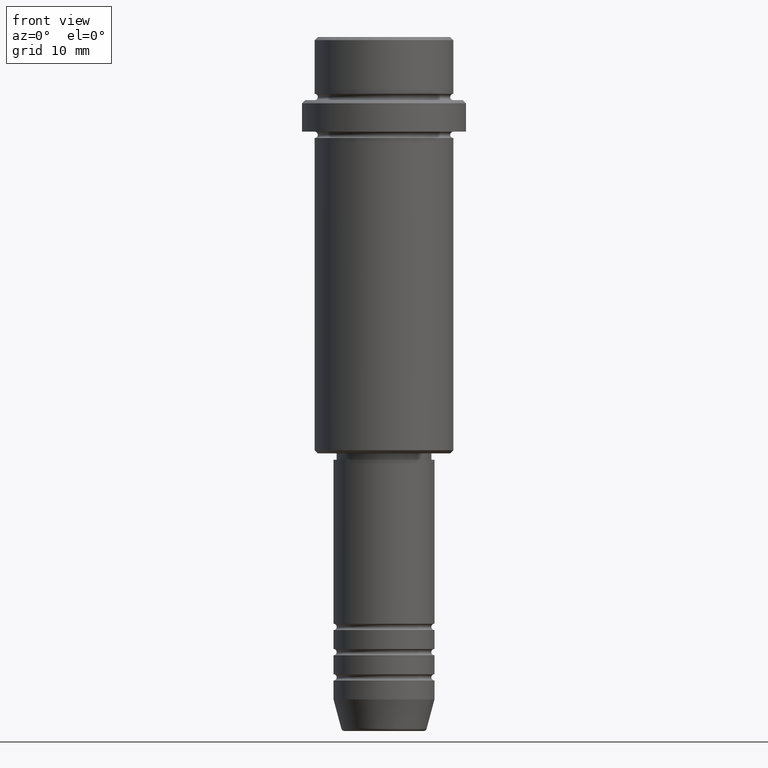
[diagram: clean part render]
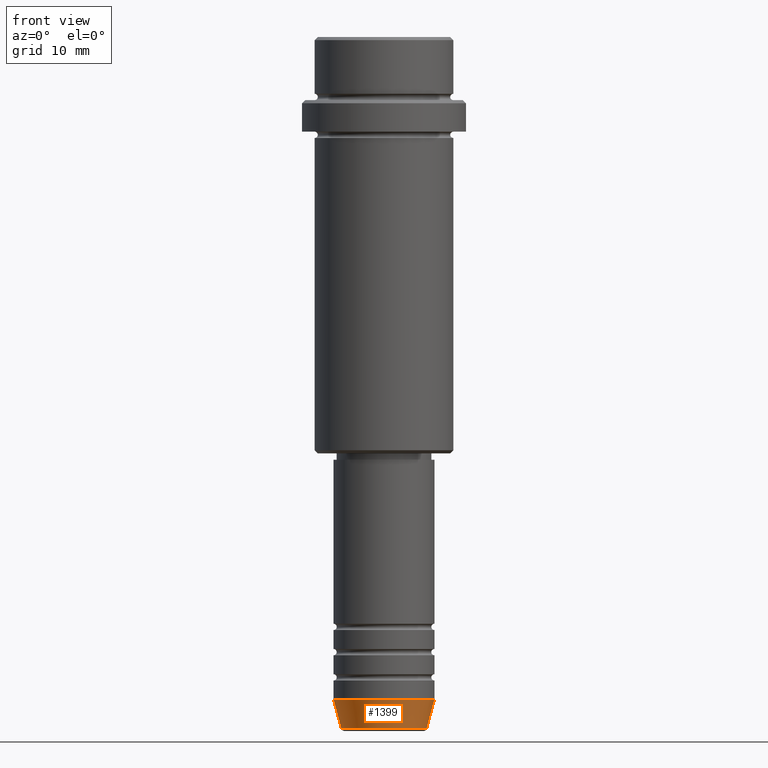
[diagram: same view with one face highlighted and labeled with its STEP entity id]
A machine part, front view. The second image highlights one B-rep face of the part: STEP entity #1399.
In plain terms, the highlighted conical surface has half-angle 15 deg.
Its self-contained STEP definition (entity closure, byte-faithful):
#14 = CARTESIAN_POINT ( 'NONE',  ( 8.000000000000000000, 0.000000000000000000, -105.0000000000000142 ) ) ;
#89 = EDGE_CURVE ( 'NONE', #248, #1394, #218, .T. ) ;
#107 = VECTOR ( 'NONE', #1205, 1000.000000000000000 ) ;
#131 = AXIS2_PLACEMENT_3D ( 'NONE', #641, #143, #1111 ) ;
#143 = DIRECTION ( 'NONE',  ( -0.000000000000000000, -0.000000000000000000, 1.000000000000000000 ) ) ;
#167 = EDGE_CURVE ( 'NONE', #248, #960, #191, .T. ) ;
#168 = ORIENTED_EDGE ( 'NONE', *, *, #167, .T. ) ;
#190 = DIRECTION ( 'NONE',  ( -0.000000000000000000, -0.000000000000000000, 1.000000000000000000 ) ) ;
#191 = CIRCLE ( 'NONE', #655, 6.759553456999433330 ) ;
#210 = DIRECTION ( 'NONE',  ( 1.000000000000000000, 0.000000000000000000, 0.000000000000000000 ) ) ;
#218 = LINE ( 'NONE', #333, #1358 ) ;
#248 = VERTEX_POINT ( 'NONE', #1221 ) ;
#290 = EDGE_LOOP ( 'NONE', ( #857, #168, #497, #692 ) ) ;
#333 = CARTESIAN_POINT ( 'NONE',  ( -8.000000000000000000, 9.797174393178825657E-16, -105.0000000000000142 ) ) ;
#393 = FACE_OUTER_BOUND ( 'NONE', #290, .T. ) ;
#420 = CARTESIAN_POINT ( 'NONE',  ( 8.000000000000000000, 0.000000000000000000, -105.0000000000000142 ) ) ;
#430 = CARTESIAN_POINT ( 'NONE',  ( -8.000000000000000000, 9.797174393178825657E-16, -105.0000000000000142 ) ) ;
#494 = EDGE_CURVE ( 'NONE', #960, #508, #768, .T. ) ;
#497 = ORIENTED_EDGE ( 'NONE', *, *, #494, .T. ) ;
#508 = VERTEX_POINT ( 'NONE', #14 ) ;
#602 = AXIS2_PLACEMENT_3D ( 'NONE', #739, #190, #942 ) ;
#633 = DIRECTION ( 'NONE',  ( -0.2588190451025213501, 3.169619151431772337E-17, 0.9659258262890680902 ) ) ;
#641 = CARTESIAN_POINT ( 'NONE',  ( 0.000000000000000000, 0.000000000000000000, -105.0000000000000142 ) ) ;
#655 = AXIS2_PLACEMENT_3D ( 'NONE', #1280, #1064, #210 ) ;
#691 = CARTESIAN_POINT ( 'NONE',  ( 6.759553456999433330, 0.000000000000000000, -109.6294095225512706 ) ) ;
#692 = ORIENTED_EDGE ( 'NONE', *, *, #912, .F. ) ;
#739 = CARTESIAN_POINT ( 'NONE',  ( 0.000000000000000000, 0.000000000000000000, -105.0000000000000142 ) ) ;
#740 = CIRCLE ( 'NONE', #131, 8.000000000000000000 ) ;
#768 = LINE ( 'NONE', #420, #107 ) ;
#857 = ORIENTED_EDGE ( 'NONE', *, *, #89, .F. ) ;
#912 = EDGE_CURVE ( 'NONE', #1394, #508, #740, .T. ) ;
#942 = DIRECTION ( 'NONE',  ( 1.000000000000000000, 0.000000000000000000, 0.000000000000000000 ) ) ;
#960 = VERTEX_POINT ( 'NONE', #691 ) ;
#1064 = DIRECTION ( 'NONE',  ( -0.000000000000000000, -0.000000000000000000, 1.000000000000000000 ) ) ;
#1111 = DIRECTION ( 'NONE',  ( 1.000000000000000000, 0.000000000000000000, 0.000000000000000000 ) ) ;
#1205 = DIRECTION ( 'NONE',  ( 0.2588190451025213501, 0.000000000000000000, 0.9659258262890680902 ) ) ;
#1221 = CARTESIAN_POINT ( 'NONE',  ( -6.759553456999433330, 9.037619948979304241E-16, -109.6294095225512706 ) ) ;
#1225 = CONICAL_SURFACE ( 'NONE', #602, 8.000000000000000000, 0.2617993877991500740 ) ;
#1280 = CARTESIAN_POINT ( 'NONE',  ( 0.000000000000000000, 0.000000000000000000, -109.6294095225512706 ) ) ;
#1358 = VECTOR ( 'NONE', #633, 1000.000000000000000 ) ;
#1394 = VERTEX_POINT ( 'NONE', #430 ) ;
#1399 = ADVANCED_FACE ( 'NONE', ( #393 ), #1225, .T. ) ;